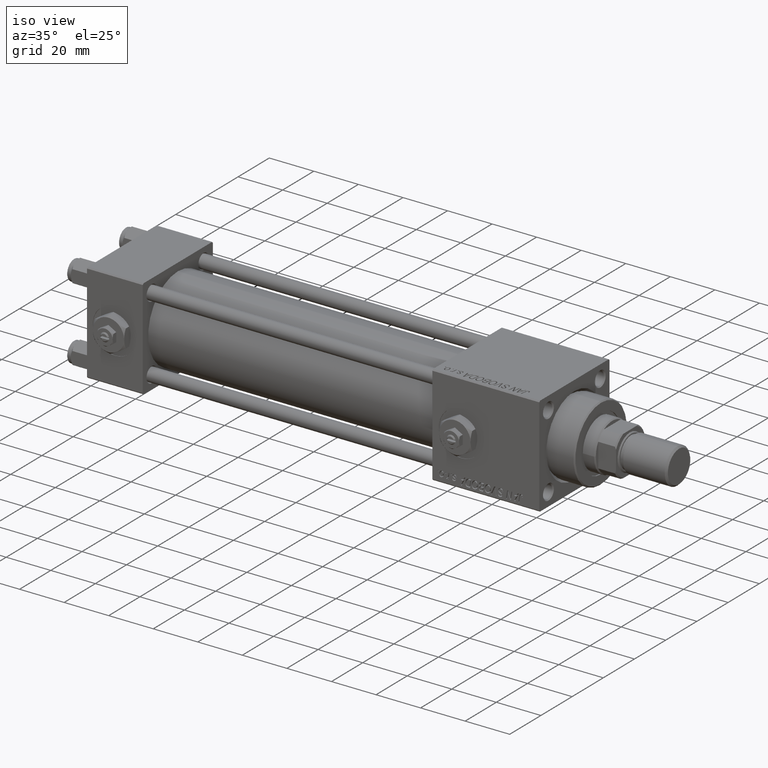
[diagram: clean part render]
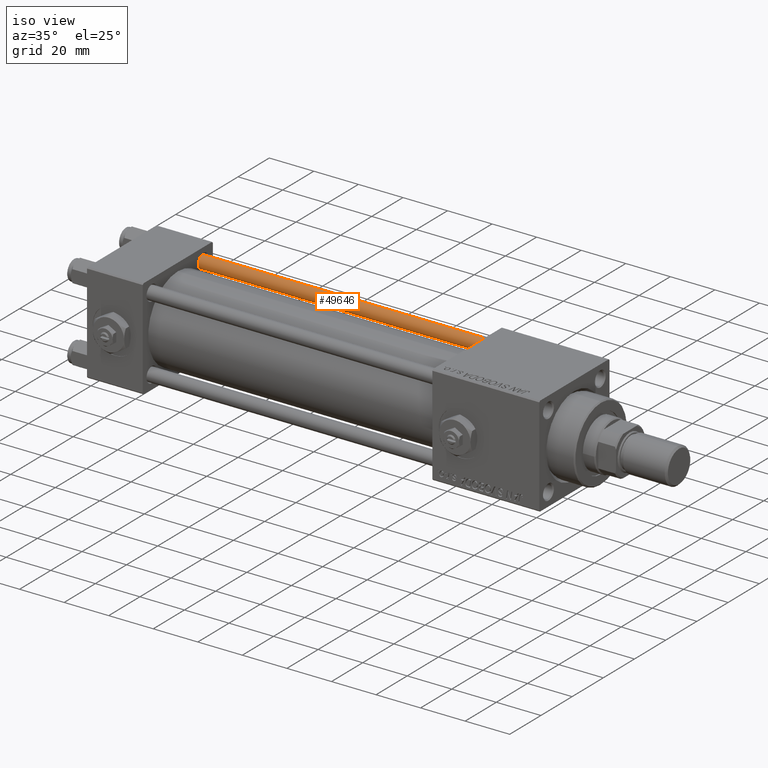
[diagram: same view with one face highlighted and labeled with its STEP entity id]
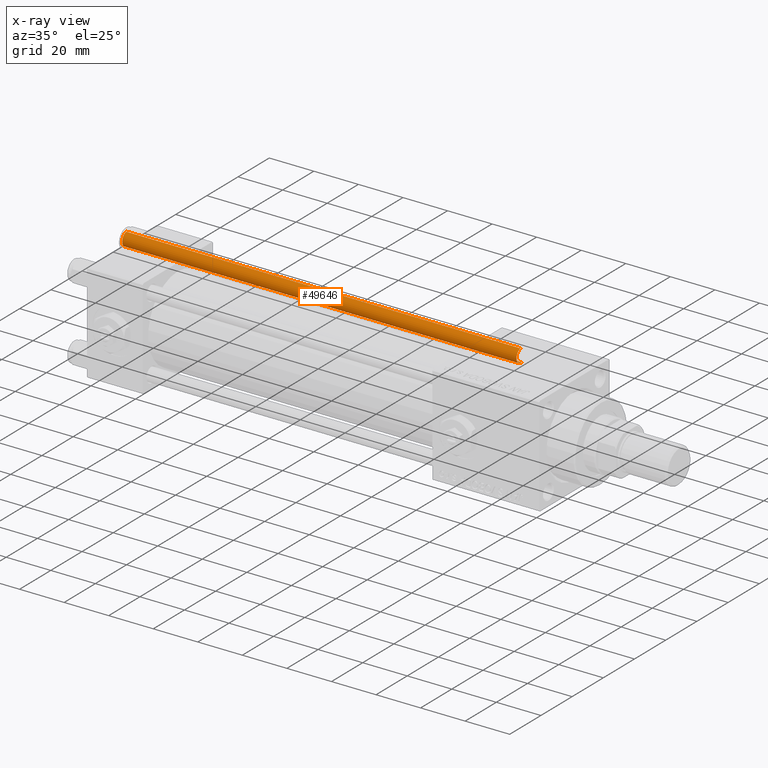
[diagram: x-ray of the same camera — body ghosted, the highlighted face saturated]
A machine part, iso view. The second image highlights one B-rep face of the part: STEP entity #49646.
The next image is the same camera in x-ray: the body ghosted, the highlighted face saturated — about 0% of this face is hidden behind the body in this view.
In plain terms, the highlighted cylindrical surface (edge-blend (fillet) strip) has radius 3 mm, axis along (-1, 0, 0).
Its self-contained STEP definition (entity closure, byte-faithful):
#573 = VECTOR ( 'NONE', #20599, 1000.000000000000000 ) ;
#1252 = CARTESIAN_POINT ( 'NONE',  ( -3.000000000000000444, 0.000000000000000000, 0.5000000000000281997 ) ) ;
#1849 = DIRECTION ( 'NONE',  ( 1.000000000000000000, 0.000000000000000000, 0.000000000000000000 ) ) ;
#1944 = CARTESIAN_POINT ( 'NONE',  ( 0.000000000000000000, 0.000000000000000000, 177.5000000000000000 ) ) ;
#3407 = ORIENTED_EDGE ( 'NONE', *, *, #40623, .F. ) ;
#4075 = EDGE_CURVE ( 'NONE', #7682, #49680, #52022, .T. ) ;
#4736 = DIRECTION ( 'NONE',  ( -1.000000000000000000, 0.000000000000000000, 0.000000000000000000 ) ) ;
#5853 = CARTESIAN_POINT ( 'NONE',  ( 0.000000000000000000, 0.000000000000000000, 0.5000000000000281997 ) ) ;
#7682 = VERTEX_POINT ( 'NONE', #47983 ) ;
#8360 = LINE ( 'NONE', #32592, #573 ) ;
#8756 = CYLINDRICAL_SURFACE ( 'NONE', #21202, 3.000000000000000444 ) ;
#9944 = DIRECTION ( 'NONE',  ( 0.000000000000000000, 0.000000000000000000, -1.000000000000000000 ) ) ;
#10295 = VERTEX_POINT ( 'NONE', #21602 ) ;
#11021 = CIRCLE ( 'NONE', #52662, 3.000000000000000444 ) ;
#12737 = CARTESIAN_POINT ( 'NONE',  ( 0.000000000000000000, 0.000000000000000000, 178.0000000000000000 ) ) ;
#15035 = DIRECTION ( 'NONE',  ( -0.000000000000000000, -0.000000000000000000, -1.000000000000000000 ) ) ;
#20599 = DIRECTION ( 'NONE',  ( -0.000000000000000000, -0.000000000000000000, -1.000000000000000000 ) ) ;
#21202 = AXIS2_PLACEMENT_3D ( 'NONE', #12737, #41216, #4736 ) ;
#21602 = CARTESIAN_POINT ( 'NONE',  ( 3.000000000000000444, 3.673940397442060361E-16, 0.5000000000000281997 ) ) ;
#23314 = CARTESIAN_POINT ( 'NONE',  ( 3.000000000000000444, 3.673940397442060361E-16, 177.5000000000000000 ) ) ;
#24215 = ORIENTED_EDGE ( 'NONE', *, *, #47509, .T. ) ;
#25515 = ORIENTED_EDGE ( 'NONE', *, *, #50547, .T. ) ;
#25813 = DIRECTION ( 'NONE',  ( -0.000000000000000000, -0.000000000000000000, 1.000000000000000000 ) ) ;
#26173 = ORIENTED_EDGE ( 'NONE', *, *, #4075, .T. ) ;
#27537 = CARTESIAN_POINT ( 'NONE',  ( -3.000000000000000444, 0.000000000000000000, 178.0000000000000000 ) ) ;
#30431 = DIRECTION ( 'NONE',  ( 1.000000000000000000, 0.000000000000000000, 0.000000000000000000 ) ) ;
#32592 = CARTESIAN_POINT ( 'NONE',  ( 3.000000000000000444, 3.673940397442060361E-16, 178.0000000000000000 ) ) ;
#32896 = VECTOR ( 'NONE', #15035, 1000.000000000000000 ) ;
#34028 = EDGE_LOOP ( 'NONE', ( #3407, #24215, #26173, #25515 ) ) ;
#38955 = CIRCLE ( 'NONE', #43201, 3.000000000000000444 ) ;
#40623 = EDGE_CURVE ( 'NONE', #52328, #10295, #8360, .T. ) ;
#41216 = DIRECTION ( 'NONE',  ( -0.000000000000000000, -0.000000000000000000, -1.000000000000000000 ) ) ;
#43201 = AXIS2_PLACEMENT_3D ( 'NONE', #1944, #9944, #30431 ) ;
#47509 = EDGE_CURVE ( 'NONE', #52328, #7682, #38955, .T. ) ;
#47983 = CARTESIAN_POINT ( 'NONE',  ( -3.000000000000000444, 0.000000000000000000, 177.5000000000000000 ) ) ;
#49198 = FACE_OUTER_BOUND ( 'NONE', #34028, .T. ) ;
#49646 = ADVANCED_FACE ( 'NONE', ( #49198 ), #8756, .T. ) ;
#49680 = VERTEX_POINT ( 'NONE', #1252 ) ;
#50547 = EDGE_CURVE ( 'NONE', #49680, #10295, #11021, .T. ) ;
#52022 = LINE ( 'NONE', #27537, #32896 ) ;
#52328 = VERTEX_POINT ( 'NONE', #23314 ) ;
#52662 = AXIS2_PLACEMENT_3D ( 'NONE', #5853, #25813, #1849 ) ;